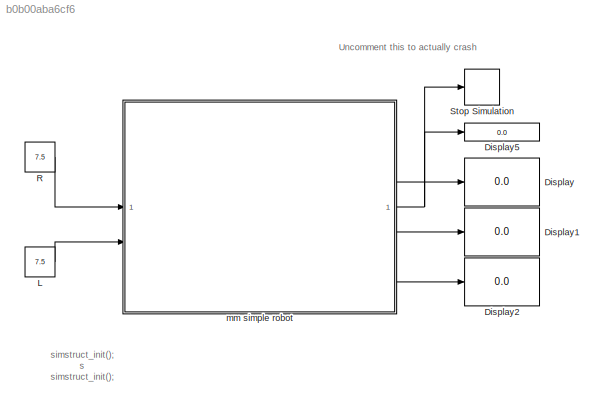
MODEL slx_b0b00aba6cf6
KIND model
CONFIG AbsTol = auto
CONFIG EnableMultiTasking = off
CONFIG FixedStep = auto
CONFIG MaxStep = auto
CONFIG MinStep = auto
CONFIG RelTol = 1e-3
CONFIG SampleTimeConstraint = Unconstrained
CONFIG SolverName = VariableStepAuto
CONFIG StartTime = 0.0
CONFIG StopTime = 10.0
BLOCK [Display] Display
  Decimation = 1
BLOCK [Display] Display1
  Decimation = 1
BLOCK [Display] Display2
  Decimation = 1
BLOCK [Display] Display5
  Decimation = 1
BLOCK [Constant] L
  Value = 7.5
BLOCK [Constant] R
  Value = 7.5
BLOCK [Stop] Stop Simulation
  Commented = on
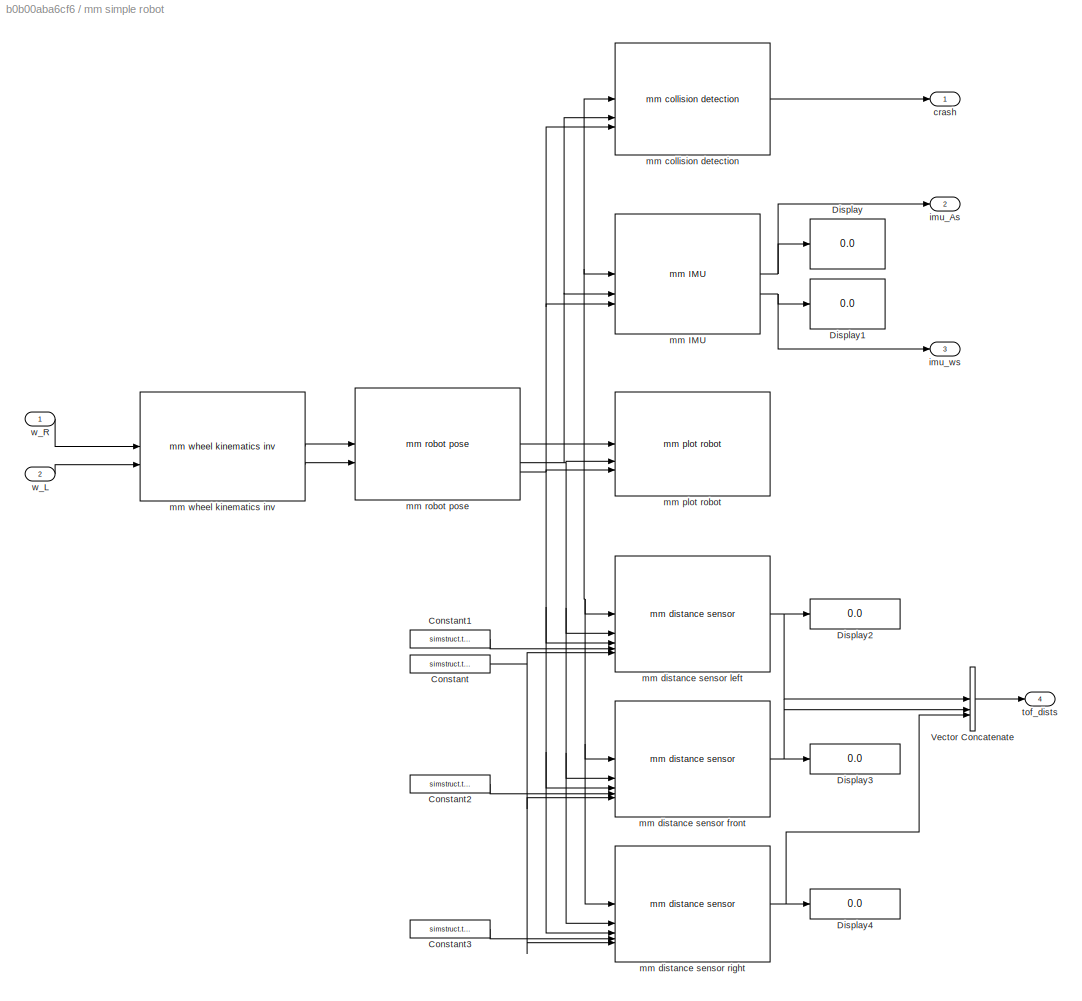
BLOCK [SubSystem] mm simple robot
BLOCK [Constant] mm simple robot/Constant
  Value = simstruct.tofspts
BLOCK [Constant] mm simple robot/Constant1
  Value = simstruct.toflpose
BLOCK [Constant] mm simple robot/Constant2
  Value = simstruct.toffpose
BLOCK [Constant] mm simple robot/Constant3
  Value = simstruct.tofrpose
BLOCK [Display] mm simple robot/Display
  Decimation = 1
BLOCK [Display] mm simple robot/Display1
  Decimation = 1
BLOCK [Display] mm simple robot/Display2
  Decimation = 1
BLOCK [Display] mm simple robot/Display3
  Decimation = 1
BLOCK [Display] mm simple robot/Display4
  Decimation = 1
BLOCK [Concatenate] mm simple robot/Vector Concatenate
  NumInputs = 3
BLOCK [Outport] mm simple robot/crash
BLOCK [Outport] mm simple robot/imu_As
  Port = 2
BLOCK [Outport] mm simple robot/imu_ws
  Port = 3
BLOCK [Reference] mm simple robot/mm IMU  REF=mmuct_lib/mm IMU  (lib defined in slx_2620ace7ce61, slx_448e9b5fb939)
  SourceBlock = mmuct_lib/mm IMU
  SourceProductName = UCT EEE Micromouse
  SourceType = SubSystem
BLOCK [Reference] mm simple robot/mm collision detection  REF=mmuct_lib/mm collision detection  (lib defined in slx_2620ace7ce61, slx_448e9b5fb939)
  SourceBlock = mmuct_lib/mm collision detection
  SourceProductName = UCT EEE Micromouse
  SourceType = MM Collision Detection
BLOCK [Reference] mm simple robot/mm distance sensor front  REF=mmuct_lib/mm distance sensor  (lib defined in slx_2620ace7ce61, slx_448e9b5fb939)
  SourceBlock = mmuct_lib/mm distance sensor
  SourceProductName = UCT EEE Micromouse
  SourceType = MM Distance Sensor
BLOCK [Reference] mm simple robot/mm distance sensor left  REF=mmuct_lib/mm distance sensor  (lib defined in slx_2620ace7ce61, slx_448e9b5fb939)
  SourceBlock = mmuct_lib/mm distance sensor
  SourceProductName = UCT EEE Micromouse
  SourceType = MM Distance Sensor
BLOCK [Reference] mm simple robot/mm distance sensor right  REF=mmuct_lib/mm distance sensor  (lib defined in slx_2620ace7ce61, slx_448e9b5fb939)
  SourceBlock = mmuct_lib/mm distance sensor
  SourceProductName = UCT EEE Micromouse
  SourceType = MM Distance Sensor
BLOCK [Reference] mm simple robot/mm plot robot  REF=mmuct_lib/mm plot robot  (lib defined in slx_2620ace7ce61, slx_448e9b5fb939)
  SourceBlock = mmuct_lib/mm plot robot
  SourceProductName = UCT EEE Micromouse
  SourceType = MM Plot Robot
BLOCK [Reference] mm simple robot/mm robot pose  REF=dhaouadi2013_lib/mm robot pose  (lib defined in slx_0665a0507d13)
  SourceBlock = dhaouadi2013_lib/mm robot pose
BLOCK [Reference] mm simple robot/mm wheel kinematics inv  REF=dhaouadi2013_lib/mm wheel kinematics inv  (lib defined in slx_0665a0507d13)
  SourceBlock = dhaouadi2013_lib/mm wheel kinematics inv
BLOCK [Outport] mm simple robot/tof_dists
  Port = 4
BLOCK [Inport] mm simple robot/w_L
  Port = 2
BLOCK [Inport] mm simple robot/w_R
ANNOTATION (root): Uncomment this to actually crash
ANNOTATION (root): simstruct_init(); s simstruct_init();
LINE L:1 -> mm simple robot:2
LINE R:1 -> mm simple robot:1
LINE mm simple robot/Constant1:1 -> mm simple robot/mm distance sensor left:4
LINE mm simple robot/Constant2:1 -> mm simple robot/mm distance sensor front:4
LINE mm simple robot/Constant3:1 -> mm simple robot/mm distance sensor right:4
NET mm simple robot/Constant:1 -> mm simple robot/mm distance sensor front:5, mm simple robot/mm distance sensor left:5, mm simple robot/mm distance sensor right:5
LINE mm simple robot/Vector Concatenate:1 -> mm simple robot/tof_dists:1
NET mm simple robot/mm IMU:1 -> mm simple robot/Display:1, mm simple robot/imu_As:1
NET mm simple robot/mm IMU:2 -> mm simple robot/Display1:1, mm simple robot/imu_ws:1
LINE mm simple robot/mm collision detection:1 -> mm simple robot/crash:1
NET mm simple robot/mm distance sensor front:1 -> mm simple robot/Display3:1, mm simple robot/Vector Concatenate:2
NET mm simple robot/mm distance sensor left:1 -> mm simple robot/Display2:1, mm simple robot/Vector Concatenate:1
NET mm simple robot/mm distance sensor right:1 -> mm simple robot/Display4:1, mm simple robot/Vector Concatenate:3
NET mm simple robot/mm robot pose:1 -> mm simple robot/mm IMU:1, mm simple robot/mm collision detection:1, mm simple robot/mm distance sensor front:1, mm simple robot/mm distance sensor left:1, mm simple robot/mm distance sensor right:1, mm simple robot/mm plot robot:1
NET mm simple robot/mm robot pose:2 -> mm simple robot/mm IMU:2, mm simple robot/mm collision detection:2, mm simple robot/mm distance sensor front:2, mm simple robot/mm distance sensor left:2, mm simple robot/mm distance sensor right:2, mm simple robot/mm plot robot:2
NET mm simple robot/mm robot pose:3 -> mm simple robot/mm IMU:3, mm simple robot/mm collision detection:3, mm simple robot/mm distance sensor front:3, mm simple robot/mm distance sensor left:3, mm simple robot/mm distance sensor right:3, mm simple robot/mm plot robot:3
LINE mm simple robot/mm wheel kinematics inv:1 -> mm simple robot/mm robot pose:1
LINE mm simple robot/mm wheel kinematics inv:2 -> mm simple robot/mm robot pose:2
LINE mm simple robot/w_L:1 -> mm simple robot/mm wheel kinematics inv:2
LINE mm simple robot/w_R:1 -> mm simple robot/mm wheel kinematics inv:1
NET mm simple robot:1 -> Display5:1, Stop Simulation:1
LINE mm simple robot:2 -> Display:1
LINE mm simple robot:3 -> Display1:1
LINE mm simple robot:4 -> Display2:1
note: NET lines group one-source signal fan-out (src -> all destinations, sorted); 1:1 wires keep LINE
